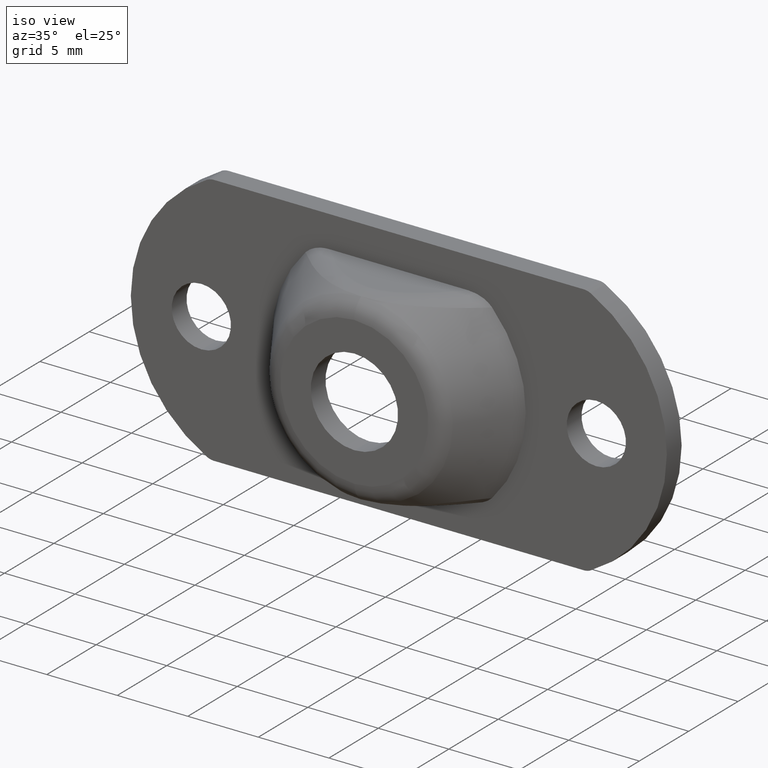
[diagram: clean part render]
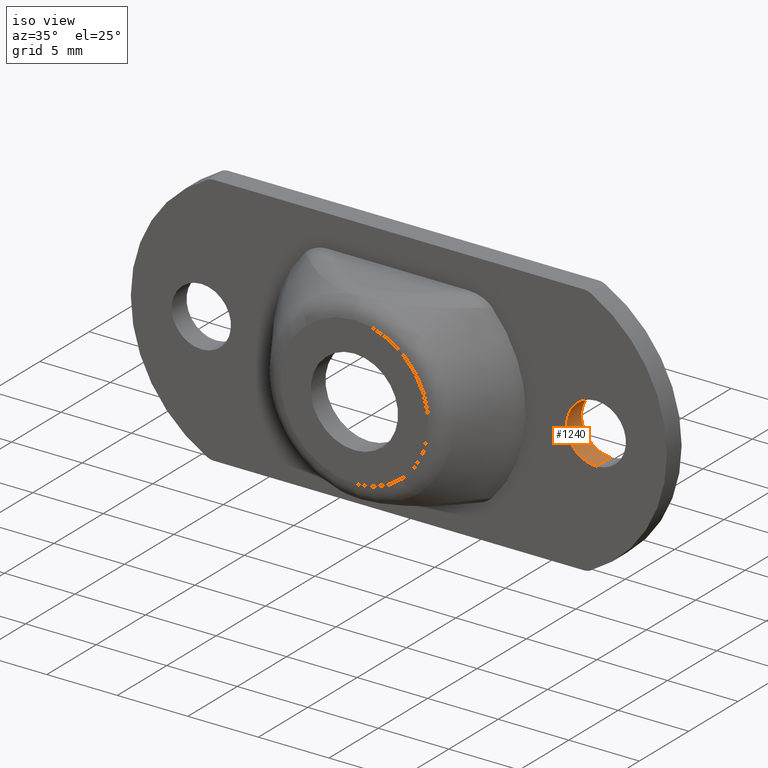
[diagram: same view with one face highlighted and labeled with its STEP entity id]
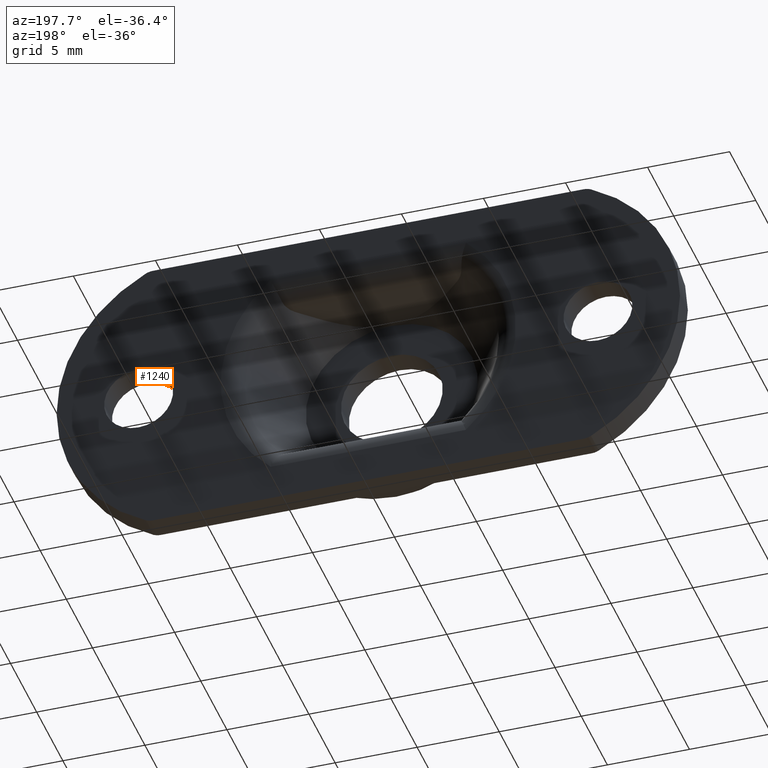
[diagram: same view with one face highlighted and labeled with its STEP entity id]
A machine part, iso view. The second image highlights one B-rep face of the part: STEP entity #1240.
A second angle (auxiliary view) of the same face is appended — the face is thin or edge-on in the first view.
In plain terms, the highlighted cylindrical surface (edge-blend (fillet) strip) has radius 2.1 mm, axis along (0, 1, 0).
Its self-contained STEP definition (entity closure, byte-faithful):
#20 = FACE_OUTER_BOUND ( 'NONE', #1174, .T. ) ;
#22 = AXIS2_PLACEMENT_3D ( 'NONE', #323, #212, #1107 ) ;
#87 = VERTEX_POINT ( 'NONE', #274 ) ;
#162 = CIRCLE ( 'NONE', #615, 2.099999999999999600 ) ;
#184 = DIRECTION ( 'NONE',  ( 0.0000000000000000000, -1.000000000000000000, 0.0000000000000000000 ) ) ;
#193 = VERTEX_POINT ( 'NONE', #927 ) ;
#208 = DIRECTION ( 'NONE',  ( 0.0000000000000000000, 1.000000000000000000, 0.0000000000000000000 ) ) ;
#212 = DIRECTION ( 'NONE',  ( -0.0000000000000000000, 1.000000000000000000, -0.0000000000000000000 ) ) ;
#274 = CARTESIAN_POINT ( 'NONE',  ( 14.00000000000000000, -1.499999999992952100, -2.100000000000000100 ) ) ;
#323 = CARTESIAN_POINT ( 'NONE',  ( 14.00000000000000000, -1.499999999992952100, 0.0000000000000000000 ) ) ;
#422 = VERTEX_POINT ( 'NONE', #1314 ) ;
#435 = DIRECTION ( 'NONE',  ( 0.0000000000000000000, 1.000000000000000000, 0.0000000000000000000 ) ) ;
#496 = VECTOR ( 'NONE', #435, 1000.000000000000000 ) ;
#518 = ORIENTED_EDGE ( 'NONE', *, *, #874, .F. ) ;
#615 = AXIS2_PLACEMENT_3D ( 'NONE', #958, #184, #1065 ) ;
#655 = LINE ( 'NONE', #1293, #1239 ) ;
#667 = ORIENTED_EDGE ( 'NONE', *, *, #973, .F. ) ;
#682 = ORIENTED_EDGE ( 'NONE', *, *, #1121, .F. ) ;
#748 = VERTEX_POINT ( 'NONE', #1271 ) ;
#795 = LINE ( 'NONE', #1152, #496 ) ;
#821 = CIRCLE ( 'NONE', #22, 2.100000000000000100 ) ;
#874 = EDGE_CURVE ( 'NONE', #87, #193, #821, .T. ) ;
#927 = CARTESIAN_POINT ( 'NONE',  ( 14.00000000000000000, -1.499999999992952100, 2.100000000000000100 ) ) ;
#958 = CARTESIAN_POINT ( 'NONE',  ( 14.00000000000000000, 0.0000000000000000000, 0.0000000000000000000 ) ) ;
#965 = DIRECTION ( 'NONE',  ( 0.0000000000000000000, 1.000000000000000000, 0.0000000000000000000 ) ) ;
#973 = EDGE_CURVE ( 'NONE', #422, #748, #162, .T. ) ;
#986 = CARTESIAN_POINT ( 'NONE',  ( 14.00000000000000000, -201000.0000000000000, 0.0000000000000000000 ) ) ;
#1065 = DIRECTION ( 'NONE',  ( 1.000000000000000000, 0.0000000000000000000, 0.0000000000000000000 ) ) ;
#1107 = DIRECTION ( 'NONE',  ( 0.0000000000000000000, 0.0000000000000000000, -1.000000000000000000 ) ) ;
#1121 = EDGE_CURVE ( 'NONE', #193, #422, #655, .T. ) ;
#1130 = DIRECTION ( 'NONE',  ( 0.0000000000000000000, 0.0000000000000000000, 1.000000000000000000 ) ) ;
#1150 = ORIENTED_EDGE ( 'NONE', *, *, #1376, .T. ) ;
#1152 = CARTESIAN_POINT ( 'NONE',  ( 14.00000000000000000, -201000.0000000000000, -2.100000000000000100 ) ) ;
#1174 = EDGE_LOOP ( 'NONE', ( #518, #1150, #667, #682 ) ) ;
#1198 = AXIS2_PLACEMENT_3D ( 'NONE', #986, #208, #1130 ) ;
#1239 = VECTOR ( 'NONE', #965, 1000.000000000000000 ) ;
#1240 = ADVANCED_FACE ( 'NONE', ( #20 ), #1398, .F. ) ;
#1271 = CARTESIAN_POINT ( 'NONE',  ( 14.00000000000000000, 0.0000000000000000000, -2.100000000000000100 ) ) ;
#1293 = CARTESIAN_POINT ( 'NONE',  ( 14.00000000000000000, -201000.0000000000000, 2.100000000000000100 ) ) ;
#1314 = CARTESIAN_POINT ( 'NONE',  ( 14.00000000000000000, 0.0000000000000000000, 2.100000000000000100 ) ) ;
#1376 = EDGE_CURVE ( 'NONE', #87, #748, #795, .T. ) ;
#1398 = CYLINDRICAL_SURFACE ( 'NONE', #1198, 2.100000000000000100 ) ;